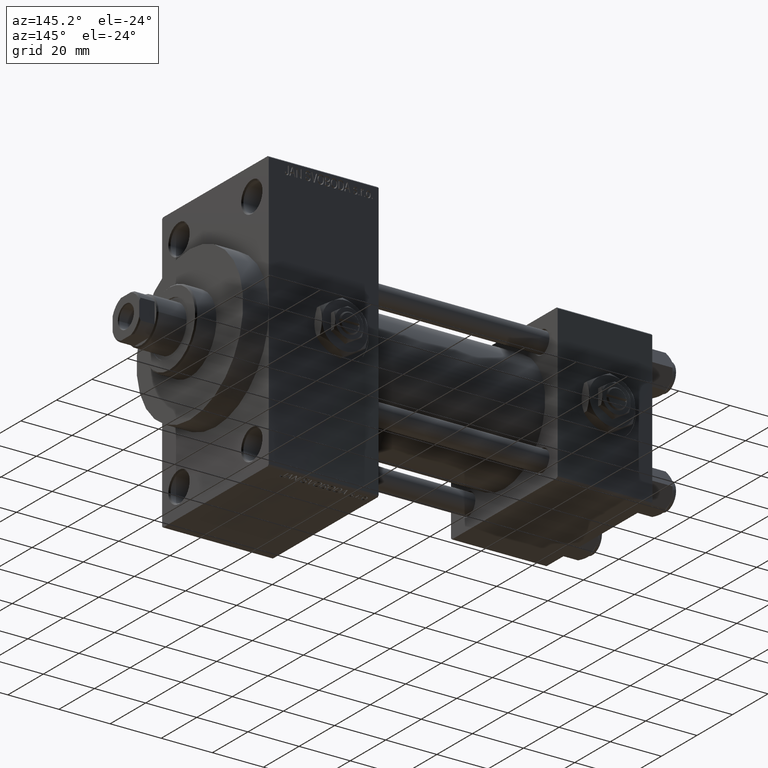
[diagram: clean part render]
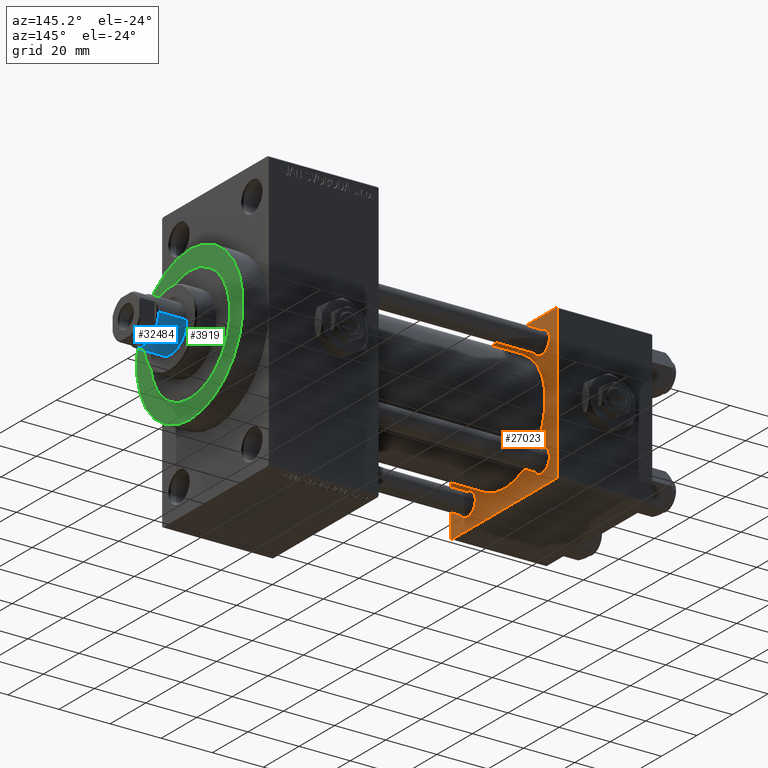
[diagram: same view with three faces highlighted in distinct colors, each labeled with its STEP entity id]
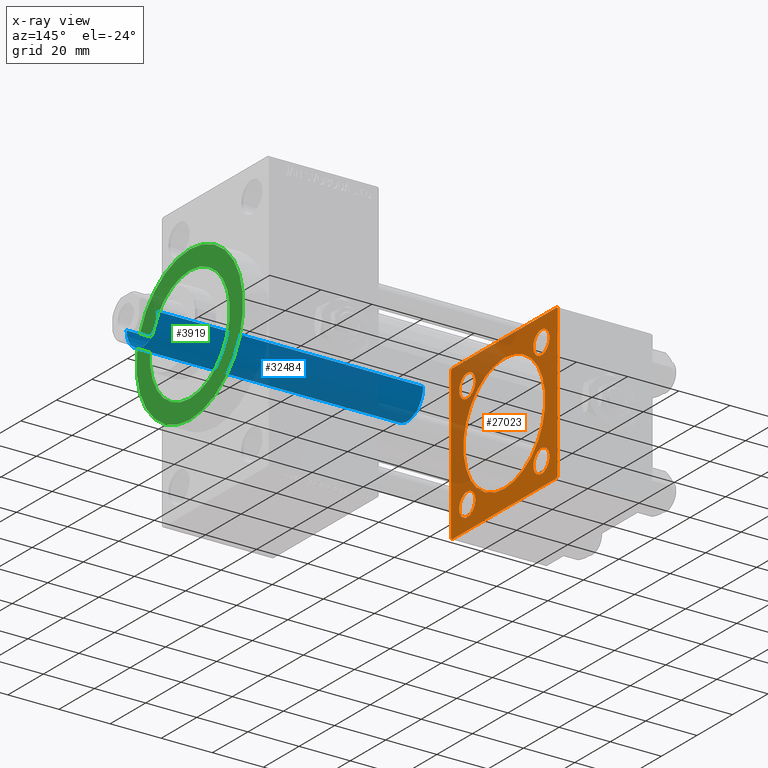
[diagram: x-ray of the same camera — body ghosted, the three highlighted faces saturated]
A machine part, auxiliary view with three faces highlighted in distinct colors.
The next image is the same camera in x-ray (body ghosted, the three faces saturated) — at least one of them is partly hidden behind the body in this view.
Their STEP definitions:

[orange] entity #27023 — the highlighted planar face has unit normal (-1, 0, 0).
#513 = DIRECTION ( 'NONE',  ( 0.000000000000000000, -1.000000000000000000, -1.156482317317871725E-16 ) ) ;
#613 = AXIS2_PLACEMENT_3D ( 'NONE', #25532, #40243, #40987 ) ;
#657 = AXIS2_PLACEMENT_3D ( 'NONE', #36276, #25553, #2140 ) ;
#885 = EDGE_CURVE ( 'NONE', #39663, #26981, #6080, .T. ) ;
#1019 = CARTESIAN_POINT ( 'NONE',  ( 37.00000000000000000, -30.00000000000000000, 29.99999999999999289 ) ) ;
#1824 = DIRECTION ( 'NONE',  ( 0.000000000000000000, -0.7071067811865474617, 0.7071067811865474617 ) ) ;
#1965 = ORIENTED_EDGE ( 'NONE', *, *, #11482, .F. ) ;
#2140 = DIRECTION ( 'NONE',  ( -0.000000000000000000, 0.000000000000000000, 1.000000000000000000 ) ) ;
#2311 = LINE ( 'NONE', #29218, #36334 ) ;
#2629 = FACE_OUTER_BOUND ( 'NONE', #21135, .T. ) ;
#2698 = CIRCLE ( 'NONE', #34523, 4.499999999999976019 ) ;
#3877 = DIRECTION ( 'NONE',  ( 0.000000000000000000, 0.000000000000000000, 1.000000000000000000 ) ) ;
#4715 = ORIENTED_EDGE ( 'NONE', *, *, #28099, .T. ) ;
#4810 = CARTESIAN_POINT ( 'NONE',  ( 37.00000000000000000, 20.84999999999999787, -20.85000000000000142 ) ) ;
#5008 = AXIS2_PLACEMENT_3D ( 'NONE', #6764, #29948, #14997 ) ;
#5011 = VECTOR ( 'NONE', #34905, 1000.000000000000000 ) ;
#5639 = EDGE_CURVE ( 'NONE', #47647, #10605, #22982, .T. ) ;
#5858 = PLANE ( 'NONE',  #657 ) ;
#6080 = LINE ( 'NONE', #33261, #31704 ) ;
#6109 = EDGE_LOOP ( 'NONE', ( #14743, #25197 ) ) ;
#6483 = VERTEX_POINT ( 'NONE', #29788 ) ;
#6731 = ORIENTED_EDGE ( 'NONE', *, *, #21401, .T. ) ;
#6764 = CARTESIAN_POINT ( 'NONE',  ( 37.00000000000000711, -2.602085213965210642E-15, 0.000000000000000000 ) ) ;
#7715 = ORIENTED_EDGE ( 'NONE', *, *, #5639, .T. ) ;
#7887 = EDGE_CURVE ( 'NONE', #44157, #17412, #40043, .T. ) ;
#7948 = CARTESIAN_POINT ( 'NONE',  ( 37.00000000000000000, -20.84999999999999076, 25.34999999999998010 ) ) ;
#8213 = CARTESIAN_POINT ( 'NONE',  ( 37.00000000000000000, -29.50000000000001066, -30.00000000000000711 ) ) ;
#8299 = DIRECTION ( 'NONE',  ( 0.000000000000000000, 0.000000000000000000, 1.000000000000000000 ) ) ;
#8343 = DIRECTION ( 'NONE',  ( -1.000000000000000000, 0.000000000000000000, -0.000000000000000000 ) ) ;
#9042 = EDGE_CURVE ( 'NONE', #12331, #33719, #48035, .T. ) ;
#9971 = CARTESIAN_POINT ( 'NONE',  ( 37.00000000000000000, 29.49999999999997868, -30.00000000000000000 ) ) ;
#10320 = CARTESIAN_POINT ( 'NONE',  ( 37.00000000000000000, -20.84999999999999076, -16.35000000000002629 ) ) ;
#10355 = FACE_BOUND ( 'NONE', #35147, .T. ) ;
#10434 = CIRCLE ( 'NONE', #24722, 4.499999999999976019 ) ;
#10605 = VERTEX_POINT ( 'NONE', #48149 ) ;
#11482 = EDGE_CURVE ( 'NONE', #19982, #17395, #38393, .T. ) ;
#11572 = CARTESIAN_POINT ( 'NONE',  ( 37.00000000000000000, 20.84999999999999787, 20.85000000000000142 ) ) ;
#11618 = CARTESIAN_POINT ( 'NONE',  ( 37.00000000000000000, -20.84999999999999076, -25.34999999999998010 ) ) ;
#12331 = VERTEX_POINT ( 'NONE', #10320 ) ;
#12393 = EDGE_LOOP ( 'NONE', ( #17006, #4715 ) ) ;
#14333 = VECTOR ( 'NONE', #30655, 1000.000000000000114 ) ;
#14743 = ORIENTED_EDGE ( 'NONE', *, *, #25516, .F. ) ;
#14804 = DIRECTION ( 'NONE',  ( -1.000000000000000000, 0.000000000000000000, -0.000000000000000000 ) ) ;
#14997 = DIRECTION ( 'NONE',  ( 0.000000000000000000, 0.000000000000000000, 1.000000000000000000 ) ) ;
#15203 = DIRECTION ( 'NONE',  ( -0.000000000000000000, 0.7071067811865574537, 0.7071067811865376918 ) ) ;
#15365 = ORIENTED_EDGE ( 'NONE', *, *, #31292, .T. ) ;
#15589 = CARTESIAN_POINT ( 'NONE',  ( 37.00000000000000000, 20.84999999999999787, -20.85000000000000142 ) ) ;
#16347 = DIRECTION ( 'NONE',  ( -0.000000000000000000, -0.7071067811865474617, -0.7071067811865474617 ) ) ;
#17006 = ORIENTED_EDGE ( 'NONE', *, *, #48698, .T. ) ;
#17340 = EDGE_CURVE ( 'NONE', #19982, #26981, #18692, .T. ) ;
#17395 = VERTEX_POINT ( 'NONE', #22180 ) ;
#17412 = VERTEX_POINT ( 'NONE', #37625 ) ;
#17564 = VERTEX_POINT ( 'NONE', #7948 ) ;
#17798 = CARTESIAN_POINT ( 'NONE',  ( 37.00000000000000000, 20.84999999999999787, 20.85000000000000142 ) ) ;
#18692 = LINE ( 'NONE', #37143, #33076 ) ;
#18717 = VERTEX_POINT ( 'NONE', #36948 ) ;
#18911 = CIRCLE ( 'NONE', #613, 23.00000000000000000 ) ;
#19461 = CARTESIAN_POINT ( 'NONE',  ( 37.00000000000000000, 29.99999999999999289, -30.00000000000000000 ) ) ;
#19682 = EDGE_CURVE ( 'NONE', #39663, #34941, #2311, .T. ) ;
#19963 = LINE ( 'NONE', #1019, #43943 ) ;
#19982 = VERTEX_POINT ( 'NONE', #9971 ) ;
#20895 = VERTEX_POINT ( 'NONE', #31974 ) ;
#21135 = EDGE_LOOP ( 'NONE', ( #1965, #35006, #35916, #29666, #22740, #32734, #29663, #15365 ) ) ;
#21299 = DIRECTION ( 'NONE',  ( 0.000000000000000000, 0.000000000000000000, -1.000000000000000000 ) ) ;
#21387 = AXIS2_PLACEMENT_3D ( 'NONE', #22499, #22980, #49179 ) ;
#21401 = EDGE_CURVE ( 'NONE', #10605, #47647, #45154, .T. ) ;
#22180 = CARTESIAN_POINT ( 'NONE',  ( 37.00000000000000000, -29.50000000000000000, -30.00000000000000711 ) ) ;
#22499 = CARTESIAN_POINT ( 'NONE',  ( 37.00000000000000000, -20.84999999999999076, 20.85000000000000497 ) ) ;
#22740 = ORIENTED_EDGE ( 'NONE', *, *, #43175, .T. ) ;
#22761 = CARTESIAN_POINT ( 'NONE',  ( 37.00000000000000000, -30.00000000000000000, 29.49999999999999289 ) ) ;
#22980 = DIRECTION ( 'NONE',  ( -1.000000000000000000, 0.000000000000000000, -0.000000000000000000 ) ) ;
#22982 = CIRCLE ( 'NONE', #46065, 4.499999999999976019 ) ;
#23307 = EDGE_CURVE ( 'NONE', #20895, #24648, #46276, .T. ) ;
#23321 = CARTESIAN_POINT ( 'NONE',  ( 37.00000000000000000, -30.00000000000000000, 29.49999999999999289 ) ) ;
#23437 = LINE ( 'NONE', #46385, #5011 ) ;
#23589 = VECTOR ( 'NONE', #16347, 1000.000000000000114 ) ;
#23930 = DIRECTION ( 'NONE',  ( 0.000000000000000000, 0.000000000000000000, -1.000000000000000000 ) ) ;
#24525 = EDGE_LOOP ( 'NONE', ( #7715, #6731 ) ) ;
#24545 = CIRCLE ( 'NONE', #21387, 4.499999999999976019 ) ;
#24648 = VERTEX_POINT ( 'NONE', #22761 ) ;
#24722 = AXIS2_PLACEMENT_3D ( 'NONE', #15589, #8343, #3877 ) ;
#25197 = ORIENTED_EDGE ( 'NONE', *, *, #7887, .F. ) ;
#25516 = EDGE_CURVE ( 'NONE', #17412, #44157, #18911, .T. ) ;
#25532 = CARTESIAN_POINT ( 'NONE',  ( 37.00000000000000711, -2.602085213965210642E-15, 0.000000000000000000 ) ) ;
#25553 = DIRECTION ( 'NONE',  ( -1.000000000000000000, 0.000000000000000000, -0.000000000000000000 ) ) ;
#25801 = CARTESIAN_POINT ( 'NONE',  ( 37.00000000000000000, 29.99999999999999289, -29.50000000000000000 ) ) ;
#26476 = CARTESIAN_POINT ( 'NONE',  ( 37.00000000000000000, 20.84999999999999787, -16.35000000000002274 ) ) ;
#26748 = DIRECTION ( 'NONE',  ( -1.000000000000000000, 0.000000000000000000, -0.000000000000000000 ) ) ;
#26981 = VERTEX_POINT ( 'NONE', #25801 ) ;
#27023 = ADVANCED_FACE ( 'NONE', ( #32287, #10355, #47510, #48507, #33282, #2629 ), #5858, .F. ) ;
#27630 = AXIS2_PLACEMENT_3D ( 'NONE', #17798, #43972, #44970 ) ;
#27927 = DIRECTION ( 'NONE',  ( 0.000000000000000000, 0.000000000000000000, 1.000000000000000000 ) ) ;
#28099 = EDGE_CURVE ( 'NONE', #17564, #6483, #24545, .T. ) ;
#28158 = AXIS2_PLACEMENT_3D ( 'NONE', #45697, #14804, #29989 ) ;
#28167 = DIRECTION ( 'NONE',  ( -1.000000000000000000, 0.000000000000000000, -0.000000000000000000 ) ) ;
#28651 = CARTESIAN_POINT ( 'NONE',  ( 37.00000000000000000, -20.84999999999999076, -20.85000000000000497 ) ) ;
#29190 = CARTESIAN_POINT ( 'NONE',  ( 37.00000000000000000, 29.49999999999999289, 30.00000000000000000 ) ) ;
#29218 = CARTESIAN_POINT ( 'NONE',  ( 37.00000000000000000, 29.49999999999999289, 30.00000000000000000 ) ) ;
#29663 = ORIENTED_EDGE ( 'NONE', *, *, #41459, .T. ) ;
#29666 = ORIENTED_EDGE ( 'NONE', *, *, #19682, .T. ) ;
#29788 = CARTESIAN_POINT ( 'NONE',  ( 37.00000000000000000, -20.84999999999999076, 16.35000000000002629 ) ) ;
#29877 = ORIENTED_EDGE ( 'NONE', *, *, #36147, .T. ) ;
#29948 = DIRECTION ( 'NONE',  ( 1.000000000000000000, -0.000000000000000000, 0.000000000000000000 ) ) ;
#29989 = DIRECTION ( 'NONE',  ( 0.000000000000000000, 0.000000000000000000, 1.000000000000000000 ) ) ;
#30655 = DIRECTION ( 'NONE',  ( 0.000000000000000000, 0.7071067811865474617, -0.7071067811865474617 ) ) ;
#30900 = LINE ( 'NONE', #8213, #14333 ) ;
#31022 = VERTEX_POINT ( 'NONE', #26476 ) ;
#31292 = EDGE_CURVE ( 'NONE', #46068, #17395, #30900, .T. ) ;
#31704 = VECTOR ( 'NONE', #21299, 1000.000000000000000 ) ;
#31974 = CARTESIAN_POINT ( 'NONE',  ( 37.00000000000000000, -29.49999999999998579, 29.99999999999999289 ) ) ;
#32287 = FACE_BOUND ( 'NONE', #40166, .T. ) ;
#32428 = CARTESIAN_POINT ( 'NONE',  ( 37.00000000000000000, -20.84999999999999076, -20.85000000000000497 ) ) ;
#32734 = ORIENTED_EDGE ( 'NONE', *, *, #23307, .T. ) ;
#32806 = EDGE_CURVE ( 'NONE', #18717, #31022, #10434, .T. ) ;
#32813 = CARTESIAN_POINT ( 'NONE',  ( 37.00000000000000711, 2.146024240737016609E-16, -23.00000000000000000 ) ) ;
#33076 = VECTOR ( 'NONE', #15203, 999.9999999999998863 ) ;
#33183 = DIRECTION ( 'NONE',  ( -1.000000000000000000, 0.000000000000000000, -0.000000000000000000 ) ) ;
#33261 = CARTESIAN_POINT ( 'NONE',  ( 37.00000000000000000, 29.99999999999999289, 30.00000000000000000 ) ) ;
#33282 = FACE_BOUND ( 'NONE', #6109, .T. ) ;
#33563 = CARTESIAN_POINT ( 'NONE',  ( 37.00000000000000000, 29.99999999999999289, 29.50000000000000000 ) ) ;
#33719 = VERTEX_POINT ( 'NONE', #11618 ) ;
#34523 = AXIS2_PLACEMENT_3D ( 'NONE', #32428, #33183, #40409 ) ;
#34905 = DIRECTION ( 'NONE',  ( 0.000000000000000000, -1.000000000000000000, -1.156482317317871725E-16 ) ) ;
#34941 = VERTEX_POINT ( 'NONE', #29190 ) ;
#35006 = ORIENTED_EDGE ( 'NONE', *, *, #17340, .T. ) ;
#35147 = EDGE_LOOP ( 'NONE', ( #42436, #29877 ) ) ;
#35916 = ORIENTED_EDGE ( 'NONE', *, *, #885, .F. ) ;
#36147 = EDGE_CURVE ( 'NONE', #31022, #18717, #47751, .T. ) ;
#36276 = CARTESIAN_POINT ( 'NONE',  ( 37.00000000000000000, 0.000000000000000000, 0.000000000000000000 ) ) ;
#36334 = VECTOR ( 'NONE', #1824, 1000.000000000000114 ) ;
#36892 = AXIS2_PLACEMENT_3D ( 'NONE', #28651, #28167, #27927 ) ;
#36920 = CIRCLE ( 'NONE', #28158, 4.499999999999976019 ) ;
#36948 = CARTESIAN_POINT ( 'NONE',  ( 37.00000000000000000, 20.84999999999999787, -25.34999999999997655 ) ) ;
#37143 = CARTESIAN_POINT ( 'NONE',  ( 37.00000000000000000, 29.99999999999999289, -29.50000000000000000 ) ) ;
#37625 = CARTESIAN_POINT ( 'NONE',  ( 37.00000000000000711, -2.602085213965210642E-15, 23.00000000000000000 ) ) ;
#38029 = ORIENTED_EDGE ( 'NONE', *, *, #9042, .T. ) ;
#38393 = LINE ( 'NONE', #19461, #47997 ) ;
#38476 = DIRECTION ( 'NONE',  ( 0.000000000000000000, 0.000000000000000000, 1.000000000000000000 ) ) ;
#39663 = VERTEX_POINT ( 'NONE', #33563 ) ;
#40043 = CIRCLE ( 'NONE', #5008, 23.00000000000000000 ) ;
#40166 = EDGE_LOOP ( 'NONE', ( #41756, #38029 ) ) ;
#40243 = DIRECTION ( 'NONE',  ( 1.000000000000000000, -0.000000000000000000, 0.000000000000000000 ) ) ;
#40409 = DIRECTION ( 'NONE',  ( 0.000000000000000000, 0.000000000000000000, 1.000000000000000000 ) ) ;
#40987 = DIRECTION ( 'NONE',  ( 0.000000000000000000, 0.000000000000000000, 1.000000000000000000 ) ) ;
#41459 = EDGE_CURVE ( 'NONE', #24648, #46068, #19963, .T. ) ;
#41756 = ORIENTED_EDGE ( 'NONE', *, *, #48934, .T. ) ;
#41976 = DIRECTION ( 'NONE',  ( -1.000000000000000000, 0.000000000000000000, -0.000000000000000000 ) ) ;
#42436 = ORIENTED_EDGE ( 'NONE', *, *, #32806, .T. ) ;
#42496 = CARTESIAN_POINT ( 'NONE',  ( 37.00000000000000000, 20.84999999999999787, 16.35000000000002274 ) ) ;
#43175 = EDGE_CURVE ( 'NONE', #34941, #20895, #23437, .T. ) ;
#43725 = CARTESIAN_POINT ( 'NONE',  ( 37.00000000000000000, -30.00000000000000000, -29.50000000000001776 ) ) ;
#43943 = VECTOR ( 'NONE', #23930, 1000.000000000000000 ) ;
#43972 = DIRECTION ( 'NONE',  ( -1.000000000000000000, 0.000000000000000000, -0.000000000000000000 ) ) ;
#44157 = VERTEX_POINT ( 'NONE', #32813 ) ;
#44596 = AXIS2_PLACEMENT_3D ( 'NONE', #4810, #26748, #8299 ) ;
#44970 = DIRECTION ( 'NONE',  ( 0.000000000000000000, 0.000000000000000000, 1.000000000000000000 ) ) ;
#45154 = CIRCLE ( 'NONE', #27630, 4.499999999999976019 ) ;
#45697 = CARTESIAN_POINT ( 'NONE',  ( 37.00000000000000000, -20.84999999999999076, 20.85000000000000497 ) ) ;
#46065 = AXIS2_PLACEMENT_3D ( 'NONE', #11572, #41976, #38476 ) ;
#46068 = VERTEX_POINT ( 'NONE', #43725 ) ;
#46276 = LINE ( 'NONE', #23321, #23589 ) ;
#46385 = CARTESIAN_POINT ( 'NONE',  ( 37.00000000000000000, 29.99999999999999289, 30.00000000000000000 ) ) ;
#47510 = FACE_BOUND ( 'NONE', #12393, .T. ) ;
#47647 = VERTEX_POINT ( 'NONE', #42496 ) ;
#47751 = CIRCLE ( 'NONE', #44596, 4.499999999999976019 ) ;
#47997 = VECTOR ( 'NONE', #513, 1000.000000000000000 ) ;
#48035 = CIRCLE ( 'NONE', #36892, 4.499999999999976019 ) ;
#48149 = CARTESIAN_POINT ( 'NONE',  ( 37.00000000000000000, 20.84999999999999787, 25.34999999999997655 ) ) ;
#48507 = FACE_BOUND ( 'NONE', #24525, .T. ) ;
#48698 = EDGE_CURVE ( 'NONE', #6483, #17564, #36920, .T. ) ;
#48934 = EDGE_CURVE ( 'NONE', #33719, #12331, #2698, .T. ) ;
#49179 = DIRECTION ( 'NONE',  ( 0.000000000000000000, 0.000000000000000000, 1.000000000000000000 ) ) ;

[blue] entity #32484 — the highlighted cylindrical surface (edge-blend (fillet) strip) has radius 9 mm, axis along (-1, 0, 0).
#55 = AXIS2_PLACEMENT_3D ( 'NONE', #42575, #27345, #23605 ) ;
#2739 = DIRECTION ( 'NONE',  ( 1.000000000000000000, 0.000000000000000000, 0.000000000000000000 ) ) ;
#5267 = AXIS2_PLACEMENT_3D ( 'NONE', #36879, #29392, #2739 ) ;
#5633 = CIRCLE ( 'NONE', #19990, 9.000000000000000000 ) ;
#7964 = EDGE_CURVE ( 'NONE', #44863, #21553, #27431, .T. ) ;
#8238 = CARTESIAN_POINT ( 'NONE',  ( -9.000000000000000000, 0.000000000000000000, 142.0000000000000000 ) ) ;
#9647 = ORIENTED_EDGE ( 'NONE', *, *, #22782, .T. ) ;
#11803 = VERTEX_POINT ( 'NONE', #38085 ) ;
#12242 = DIRECTION ( 'NONE',  ( -0.000000000000000000, -0.000000000000000000, -1.000000000000000000 ) ) ;
#16386 = FACE_OUTER_BOUND ( 'NONE', #42055, .T. ) ;
#16409 = VERTEX_POINT ( 'NONE', #26940 ) ;
#17363 = DIRECTION ( 'NONE',  ( 0.000000000000000000, 0.000000000000000000, 1.000000000000000000 ) ) ;
#19349 = VECTOR ( 'NONE', #12242, 1000.000000000000000 ) ;
#19990 = AXIS2_PLACEMENT_3D ( 'NONE', #31823, #17363, #36047 ) ;
#21553 = VERTEX_POINT ( 'NONE', #24454 ) ;
#22782 = EDGE_CURVE ( 'NONE', #44863, #11803, #47484, .T. ) ;
#23605 = DIRECTION ( 'NONE',  ( -1.000000000000000000, 0.000000000000000000, 0.000000000000000000 ) ) ;
#24454 = CARTESIAN_POINT ( 'NONE',  ( -9.000000000000000000, 0.000000000000000000, 38.00000000000000000 ) ) ;
#25822 = ORIENTED_EDGE ( 'NONE', *, *, #40430, .T. ) ;
#26940 = CARTESIAN_POINT ( 'NONE',  ( 9.000000000000000000, 1.102182119232617517E-15, 38.00000000000000000 ) ) ;
#27345 = DIRECTION ( 'NONE',  ( -0.000000000000000000, -0.000000000000000000, -1.000000000000000000 ) ) ;
#27431 = LINE ( 'NONE', #8238, #19349 ) ;
#28913 = ORIENTED_EDGE ( 'NONE', *, *, #38798, .T. ) ;
#29392 = DIRECTION ( 'NONE',  ( 0.000000000000000000, 0.000000000000000000, -1.000000000000000000 ) ) ;
#31339 = CYLINDRICAL_SURFACE ( 'NONE', #55, 9.000000000000000000 ) ;
#31823 = CARTESIAN_POINT ( 'NONE',  ( 0.000000000000000000, 0.000000000000000000, 38.00000000000000000 ) ) ;
#31905 = DIRECTION ( 'NONE',  ( -0.000000000000000000, -0.000000000000000000, -1.000000000000000000 ) ) ;
#32484 = ADVANCED_FACE ( 'NONE', ( #16386 ), #31339, .T. ) ;
#36047 = DIRECTION ( 'NONE',  ( 1.000000000000000000, 0.000000000000000000, 0.000000000000000000 ) ) ;
#36879 = CARTESIAN_POINT ( 'NONE',  ( 0.000000000000000000, 0.000000000000000000, 141.5000000000000853 ) ) ;
#38085 = CARTESIAN_POINT ( 'NONE',  ( 9.000000000000000000, 1.102182119232617517E-15, 141.5000000000000853 ) ) ;
#38798 = EDGE_CURVE ( 'NONE', #16409, #21553, #5633, .T. ) ;
#40430 = EDGE_CURVE ( 'NONE', #11803, #16409, #42905, .T. ) ;
#42055 = EDGE_LOOP ( 'NONE', ( #9647, #25822, #28913, #47970 ) ) ;
#42575 = CARTESIAN_POINT ( 'NONE',  ( 0.000000000000000000, 0.000000000000000000, 142.0000000000000000 ) ) ;
#42598 = CARTESIAN_POINT ( 'NONE',  ( -9.000000000000000000, 0.000000000000000000, 141.5000000000000853 ) ) ;
#42905 = LINE ( 'NONE', #47618, #46296 ) ;
#44863 = VERTEX_POINT ( 'NONE', #42598 ) ;
#46296 = VECTOR ( 'NONE', #31905, 1000.000000000000000 ) ;
#47484 = CIRCLE ( 'NONE', #5267, 9.000000000000000000 ) ;
#47618 = CARTESIAN_POINT ( 'NONE',  ( 9.000000000000000000, 1.102182119232617517E-15, 142.0000000000000000 ) ) ;
#47970 = ORIENTED_EDGE ( 'NONE', *, *, #7964, .F. ) ;

[green] entity #3919 — the highlighted planar face has unit normal (1, 0, 0).
#930 = DIRECTION ( 'NONE',  ( 1.000000000000000000, 0.000000000000000000, 0.000000000000000000 ) ) ;
#1503 = DIRECTION ( 'NONE',  ( 1.000000000000000000, 0.000000000000000000, 0.000000000000000000 ) ) ;
#3919 = ADVANCED_FACE ( 'NONE', ( #5469, #28394 ), #20679, .T. ) ;
#3998 = ORIENTED_EDGE ( 'NONE', *, *, #43107, .T. ) ;
#4866 = AXIS2_PLACEMENT_3D ( 'NONE', #14440, #29626, #6942 ) ;
#5137 = CARTESIAN_POINT ( 'NONE',  ( 160.0000000000000284, 0.000000000000000000, -22.50000000000000355 ) ) ;
#5469 = FACE_BOUND ( 'NONE', #30913, .T. ) ;
#6442 = VERTEX_POINT ( 'NONE', #47258 ) ;
#6942 = DIRECTION ( 'NONE',  ( 0.000000000000000000, 0.000000000000000000, -1.000000000000000000 ) ) ;
#9454 = DIRECTION ( 'NONE',  ( 0.000000000000000000, 0.000000000000000000, -1.000000000000000000 ) ) ;
#12018 = EDGE_CURVE ( 'NONE', #22375, #26915, #40876, .T. ) ;
#12576 = AXIS2_PLACEMENT_3D ( 'NONE', #23925, #1503, #9454 ) ;
#12991 = AXIS2_PLACEMENT_3D ( 'NONE', #38899, #47297, #13645 ) ;
#13013 = AXIS2_PLACEMENT_3D ( 'NONE', #40788, #17121, #24829 ) ;
#13645 = DIRECTION ( 'NONE',  ( 0.000000000000000000, 0.000000000000000000, -1.000000000000000000 ) ) ;
#14440 = CARTESIAN_POINT ( 'NONE',  ( 160.0000000000000284, 0.000000000000000000, 0.000000000000000000 ) ) ;
#15414 = EDGE_CURVE ( 'NONE', #6442, #30472, #31402, .T. ) ;
#17121 = DIRECTION ( 'NONE',  ( 1.000000000000000000, 0.000000000000000000, 0.000000000000000000 ) ) ;
#17753 = CIRCLE ( 'NONE', #12991, 30.00000000000000000 ) ;
#19491 = AXIS2_PLACEMENT_3D ( 'NONE', #19870, #930, #42313 ) ;
#19870 = CARTESIAN_POINT ( 'NONE',  ( 160.0000000000000284, 0.000000000000000000, 0.000000000000000000 ) ) ;
#20679 = PLANE ( 'NONE',  #12576 ) ;
#22375 = VERTEX_POINT ( 'NONE', #26743 ) ;
#23925 = CARTESIAN_POINT ( 'NONE',  ( 160.0000000000000284, 0.000000000000000000, 0.000000000000000000 ) ) ;
#24829 = DIRECTION ( 'NONE',  ( 0.000000000000000000, 0.000000000000000000, -1.000000000000000000 ) ) ;
#26743 = CARTESIAN_POINT ( 'NONE',  ( 160.0000000000000284, 2.755455298081545172E-15, 22.50000000000000355 ) ) ;
#26915 = VERTEX_POINT ( 'NONE', #5137 ) ;
#28394 = FACE_OUTER_BOUND ( 'NONE', #43408, .T. ) ;
#28436 = ORIENTED_EDGE ( 'NONE', *, *, #38625, .F. ) ;
#29549 = ORIENTED_EDGE ( 'NONE', *, *, #12018, .F. ) ;
#29561 = CIRCLE ( 'NONE', #4866, 22.50000000000000355 ) ;
#29626 = DIRECTION ( 'NONE',  ( 1.000000000000000000, 0.000000000000000000, 0.000000000000000000 ) ) ;
#30472 = VERTEX_POINT ( 'NONE', #41566 ) ;
#30913 = EDGE_LOOP ( 'NONE', ( #28436, #29549 ) ) ;
#31402 = CIRCLE ( 'NONE', #19491, 30.00000000000000000 ) ;
#38625 = EDGE_CURVE ( 'NONE', #26915, #22375, #29561, .T. ) ;
#38899 = CARTESIAN_POINT ( 'NONE',  ( 160.0000000000000284, 0.000000000000000000, 0.000000000000000000 ) ) ;
#40788 = CARTESIAN_POINT ( 'NONE',  ( 160.0000000000000284, 0.000000000000000000, 0.000000000000000000 ) ) ;
#40876 = CIRCLE ( 'NONE', #13013, 22.50000000000000355 ) ;
#41566 = CARTESIAN_POINT ( 'NONE',  ( 160.0000000000000284, 3.673940397442059178E-15, -30.00000000000000000 ) ) ;
#42313 = DIRECTION ( 'NONE',  ( 0.000000000000000000, 0.000000000000000000, -1.000000000000000000 ) ) ;
#43107 = EDGE_CURVE ( 'NONE', #30472, #6442, #17753, .T. ) ;
#43408 = EDGE_LOOP ( 'NONE', ( #49060, #3998 ) ) ;
#47258 = CARTESIAN_POINT ( 'NONE',  ( 160.0000000000000284, 0.000000000000000000, 30.00000000000000000 ) ) ;
#47297 = DIRECTION ( 'NONE',  ( 1.000000000000000000, 0.000000000000000000, 0.000000000000000000 ) ) ;
#49060 = ORIENTED_EDGE ( 'NONE', *, *, #15414, .T. ) ;